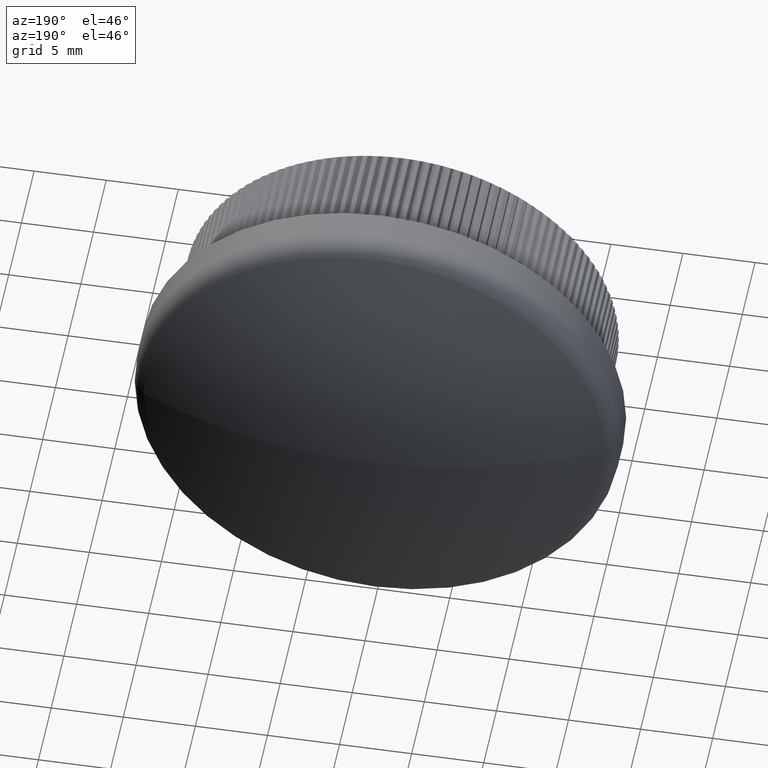
[diagram: clean part render]
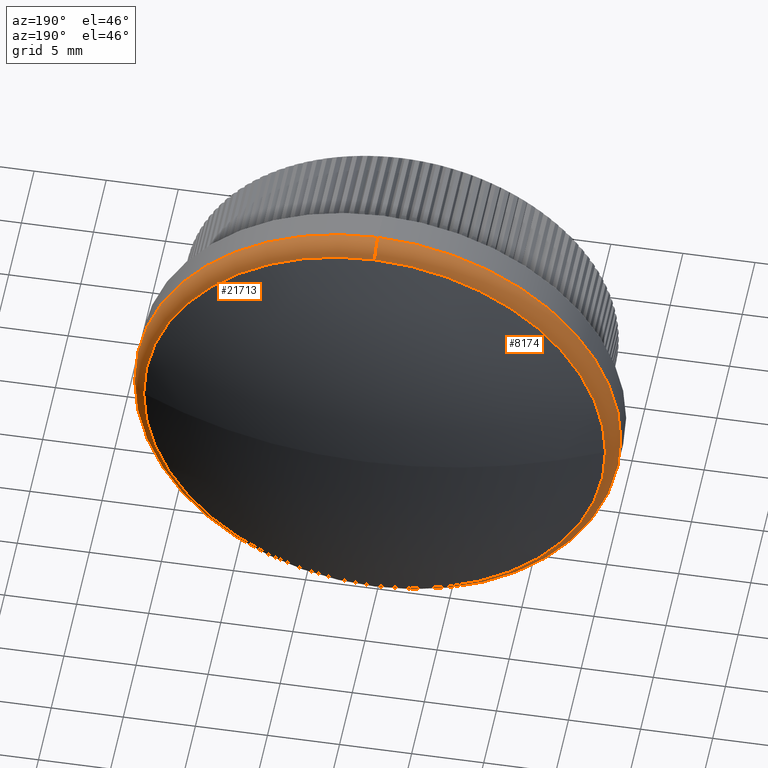
[diagram: same view with one multi-face feature highlighted, each face labeled with its STEP entity id]
A machine part, auxiliary view. The highlighted faces form ONE feature: a constant-radius fillet chain: 2 tangent blend faces with common blend radius 1.5 mm. The faces share edges in the B-rep.
Their STEP definitions:
[1] entity #8174 (Torus):
#277 = CARTESIAN_POINT ( 'NONE',  ( 0.0000000000000000000, 11.22776762478764600, 0.0000000000000000000 ) ) ;
#342 = ORIENTED_EDGE ( 'NONE', *, *, #17334, .F. ) ;
#473 = AXIS2_PLACEMENT_3D ( 'NONE', #6049, #20264, #3966 ) ;
#1464 = VERTEX_POINT ( 'NONE', #15207 ) ;
#1488 = AXIS2_PLACEMENT_3D ( 'NONE', #277, #18556, #14588 ) ;
#1536 = ORIENTED_EDGE ( 'NONE', *, *, #9403, .T. ) ;
#1726 = EDGE_LOOP ( 'NONE', ( #20420, #4747, #342, #1536, #10079 ) ) ;
#2115 = CARTESIAN_POINT ( 'NONE',  ( 0.0000000000000000000, 11.22776762478764600, 0.0000000000000000000 ) ) ;
#3476 = CIRCLE ( 'NONE', #4448, 1.499999999999999600 ) ;
#3966 = DIRECTION ( 'NONE',  ( 0.0000000000000000000, 0.0000000000000000000, -1.000000000000000000 ) ) ;
#4448 = AXIS2_PLACEMENT_3D ( 'NONE', #18069, #11804, #26220 ) ;
#4685 = DIRECTION ( 'NONE',  ( 0.0000000000000000000, 0.0000000000000000000, -1.000000000000000000 ) ) ;
#4747 = ORIENTED_EDGE ( 'NONE', *, *, #25398, .F. ) ;
#4874 = VERTEX_POINT ( 'NONE', #13956 ) ;
#5178 = EDGE_CURVE ( 'NONE', #15172, #4874, #25378, .T. ) ;
#5437 = CARTESIAN_POINT ( 'NONE',  ( 2.012665719586202600E-015, 11.22776762478764600, 16.01932560453346000 ) ) ;
#5615 = DIRECTION ( 'NONE',  ( -1.224646799147353500E-016, 0.0000000000000000000, -1.000000000000000000 ) ) ;
#6049 = CARTESIAN_POINT ( 'NONE',  ( 0.0000000000000000000, 9.885380484236923900, 0.0000000000000000000 ) ) ;
#6599 = CARTESIAN_POINT ( 'NONE',  ( 0.0000000000000000000, 9.885380484236923900, -16.85000000000000500 ) ) ;
#6730 = AXIS2_PLACEMENT_3D ( 'NONE', #22975, #25010, #4685 ) ;
#7173 = VERTEX_POINT ( 'NONE', #6599 ) ;
#8174 = ADVANCED_FACE ( 'NONE', ( #11499 ), #20825, .T. ) ;
#9403 = EDGE_CURVE ( 'NONE', #1464, #7173, #3476, .T. ) ;
#10070 = CIRCLE ( 'NONE', #1488, 16.01932560453346000 ) ;
#10079 = ORIENTED_EDGE ( 'NONE', *, *, #11631, .F. ) ;
#10321 = DIRECTION ( 'NONE',  ( 0.0000000000000000000, 1.000000000000000000, 0.0000000000000000000 ) ) ;
#11499 = FACE_OUTER_BOUND ( 'NONE', #1726, .T. ) ;
#11631 = EDGE_CURVE ( 'NONE', #4874, #7173, #15011, .T. ) ;
#11804 = DIRECTION ( 'NONE',  ( -1.000000000000000000, 0.0000000000000000000, 0.0000000000000000000 ) ) ;
#12376 = CIRCLE ( 'NONE', #22157, 16.01932560453346000 ) ;
#13956 = CARTESIAN_POINT ( 'NONE',  ( 2.063529856563290600E-015, 9.885380484236923900, 16.85000000000000500 ) ) ;
#14022 = AXIS2_PLACEMENT_3D ( 'NONE', #23535, #15355, #5615 ) ;
#14588 = DIRECTION ( 'NONE',  ( 0.0000000000000000000, 0.0000000000000000000, -1.000000000000000000 ) ) ;
#15011 = CIRCLE ( 'NONE', #6730, 16.85000000000000500 ) ;
#15172 = VERTEX_POINT ( 'NONE', #5437 ) ;
#15207 = CARTESIAN_POINT ( 'NONE',  ( 0.0000000000000000000, 11.22776762478764600, -16.01932560453346000 ) ) ;
#15355 = DIRECTION ( 'NONE',  ( 1.000000000000000000, 0.0000000000000000000, -1.224646799147353500E-016 ) ) ;
#17334 = EDGE_CURVE ( 'NONE', #1464, #26454, #10070, .T. ) ;
#18069 = CARTESIAN_POINT ( 'NONE',  ( 0.0000000000000000000, 9.885380484236923900, -15.35000000000000500 ) ) ;
#18556 = DIRECTION ( 'NONE',  ( 0.0000000000000000000, 1.000000000000000000, 0.0000000000000000000 ) ) ;
#20264 = DIRECTION ( 'NONE',  ( -0.0000000000000000000, -1.000000000000000000, -0.0000000000000000000 ) ) ;
#20420 = ORIENTED_EDGE ( 'NONE', *, *, #5178, .F. ) ;
#20536 = DIRECTION ( 'NONE',  ( 0.0000000000000000000, 0.0000000000000000000, -1.000000000000000000 ) ) ;
#20825 = TOROIDAL_SURFACE ( 'NONE', #473, 15.35000000000000500, 1.500000000000000000 ) ;
#22157 = AXIS2_PLACEMENT_3D ( 'NONE', #2115, #10321, #20536 ) ;
#22975 = CARTESIAN_POINT ( 'NONE',  ( 0.0000000000000000000, 9.885380484236923900, 0.0000000000000000000 ) ) ;
#23163 = CARTESIAN_POINT ( 'NONE',  ( -16.01932560453345300, 11.22776762478764600, 1.961801582609113400E-015 ) ) ;
#23535 = CARTESIAN_POINT ( 'NONE',  ( 1.879832836691188300E-015, 9.885380484236923900, 15.35000000000000500 ) ) ;
#25010 = DIRECTION ( 'NONE',  ( -0.0000000000000000000, -1.000000000000000000, -0.0000000000000000000 ) ) ;
#25378 = CIRCLE ( 'NONE', #14022, 1.499999999999999600 ) ;
#25398 = EDGE_CURVE ( 'NONE', #26454, #15172, #12376, .T. ) ;
#26220 = DIRECTION ( 'NONE',  ( 0.0000000000000000000, 0.0000000000000000000, 1.000000000000000000 ) ) ;
#26454 = VERTEX_POINT ( 'NONE', #23163 ) ;
[2] entity #21713 (Torus):
#1464 = VERTEX_POINT ( 'NONE', #15207 ) ;
#2246 = CIRCLE ( 'NONE', #16762, 16.85000000000000500 ) ;
#2575 = FACE_OUTER_BOUND ( 'NONE', #24487, .T. ) ;
#3203 = AXIS2_PLACEMENT_3D ( 'NONE', #11608, #5545, #15456 ) ;
#3476 = CIRCLE ( 'NONE', #4448, 1.499999999999999600 ) ;
#4000 = EDGE_CURVE ( 'NONE', #25793, #1464, #16092, .T. ) ;
#4448 = AXIS2_PLACEMENT_3D ( 'NONE', #18069, #11804, #26220 ) ;
#4874 = VERTEX_POINT ( 'NONE', #13956 ) ;
#4947 = ORIENTED_EDGE ( 'NONE', *, *, #21098, .F. ) ;
#5178 = EDGE_CURVE ( 'NONE', #15172, #4874, #25378, .T. ) ;
#5437 = CARTESIAN_POINT ( 'NONE',  ( 2.012665719586202600E-015, 11.22776762478764600, 16.01932560453346000 ) ) ;
#5545 = DIRECTION ( 'NONE',  ( 0.0000000000000000000, 1.000000000000000000, 0.0000000000000000000 ) ) ;
#5615 = DIRECTION ( 'NONE',  ( -1.224646799147353500E-016, 0.0000000000000000000, -1.000000000000000000 ) ) ;
#6599 = CARTESIAN_POINT ( 'NONE',  ( 0.0000000000000000000, 9.885380484236923900, -16.85000000000000500 ) ) ;
#6606 = DIRECTION ( 'NONE',  ( 0.0000000000000000000, 1.000000000000000000, 0.0000000000000000000 ) ) ;
#7173 = VERTEX_POINT ( 'NONE', #6599 ) ;
#7986 = CARTESIAN_POINT ( 'NONE',  ( 16.01932560453345300, 11.22776762478764600, 0.0000000000000000000 ) ) ;
#8607 = TOROIDAL_SURFACE ( 'NONE', #16730, 15.35000000000000500, 1.500000000000000000 ) ;
#9403 = EDGE_CURVE ( 'NONE', #1464, #7173, #3476, .T. ) ;
#9715 = EDGE_CURVE ( 'NONE', #7173, #4874, #2246, .T. ) ;
#9899 = ORIENTED_EDGE ( 'NONE', *, *, #9715, .F. ) ;
#11608 = CARTESIAN_POINT ( 'NONE',  ( 0.0000000000000000000, 11.22776762478764600, 0.0000000000000000000 ) ) ;
#11804 = DIRECTION ( 'NONE',  ( -1.000000000000000000, 0.0000000000000000000, 0.0000000000000000000 ) ) ;
#13956 = CARTESIAN_POINT ( 'NONE',  ( 2.063529856563290600E-015, 9.885380484236923900, 16.85000000000000500 ) ) ;
#14022 = AXIS2_PLACEMENT_3D ( 'NONE', #23535, #15355, #5615 ) ;
#14710 = ORIENTED_EDGE ( 'NONE', *, *, #9403, .F. ) ;
#14822 = DIRECTION ( 'NONE',  ( 0.0000000000000000000, 0.0000000000000000000, -1.000000000000000000 ) ) ;
#14990 = CARTESIAN_POINT ( 'NONE',  ( 0.0000000000000000000, 11.22776762478764600, 0.0000000000000000000 ) ) ;
#15075 = DIRECTION ( 'NONE',  ( 0.0000000000000000000, 0.0000000000000000000, -1.000000000000000000 ) ) ;
#15172 = VERTEX_POINT ( 'NONE', #5437 ) ;
#15207 = CARTESIAN_POINT ( 'NONE',  ( 0.0000000000000000000, 11.22776762478764600, -16.01932560453346000 ) ) ;
#15355 = DIRECTION ( 'NONE',  ( 1.000000000000000000, 0.0000000000000000000, -1.224646799147353500E-016 ) ) ;
#15456 = DIRECTION ( 'NONE',  ( 0.0000000000000000000, 0.0000000000000000000, -1.000000000000000000 ) ) ;
#16092 = CIRCLE ( 'NONE', #3203, 16.01932560453346000 ) ;
#16696 = DIRECTION ( 'NONE',  ( -0.0000000000000000000, -1.000000000000000000, -0.0000000000000000000 ) ) ;
#16730 = AXIS2_PLACEMENT_3D ( 'NONE', #20127, #26113, #21840 ) ;
#16762 = AXIS2_PLACEMENT_3D ( 'NONE', #25228, #16696, #14822 ) ;
#18069 = CARTESIAN_POINT ( 'NONE',  ( 0.0000000000000000000, 9.885380484236923900, -15.35000000000000500 ) ) ;
#18679 = ORIENTED_EDGE ( 'NONE', *, *, #4000, .F. ) ;
#20127 = CARTESIAN_POINT ( 'NONE',  ( 0.0000000000000000000, 9.885380484236923900, 0.0000000000000000000 ) ) ;
#21051 = ORIENTED_EDGE ( 'NONE', *, *, #5178, .T. ) ;
#21098 = EDGE_CURVE ( 'NONE', #15172, #25793, #24406, .T. ) ;
#21713 = ADVANCED_FACE ( 'NONE', ( #2575 ), #8607, .T. ) ;
#21840 = DIRECTION ( 'NONE',  ( 0.0000000000000000000, 0.0000000000000000000, -1.000000000000000000 ) ) ;
#23135 = AXIS2_PLACEMENT_3D ( 'NONE', #14990, #6606, #15075 ) ;
#23535 = CARTESIAN_POINT ( 'NONE',  ( 1.879832836691188300E-015, 9.885380484236923900, 15.35000000000000500 ) ) ;
#24406 = CIRCLE ( 'NONE', #23135, 16.01932560453346000 ) ;
#24487 = EDGE_LOOP ( 'NONE', ( #4947, #21051, #9899, #14710, #18679 ) ) ;
#25228 = CARTESIAN_POINT ( 'NONE',  ( 0.0000000000000000000, 9.885380484236923900, 0.0000000000000000000 ) ) ;
#25378 = CIRCLE ( 'NONE', #14022, 1.499999999999999600 ) ;
#25793 = VERTEX_POINT ( 'NONE', #7986 ) ;
#26113 = DIRECTION ( 'NONE',  ( -0.0000000000000000000, -1.000000000000000000, -0.0000000000000000000 ) ) ;
#26220 = DIRECTION ( 'NONE',  ( 0.0000000000000000000, 0.0000000000000000000, 1.000000000000000000 ) ) ;